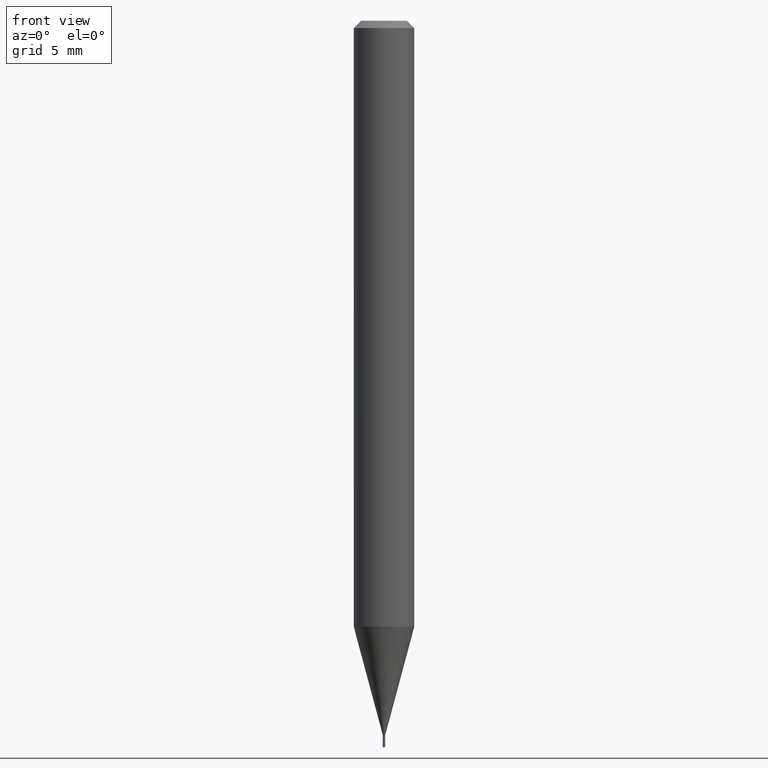
[diagram: clean part render]
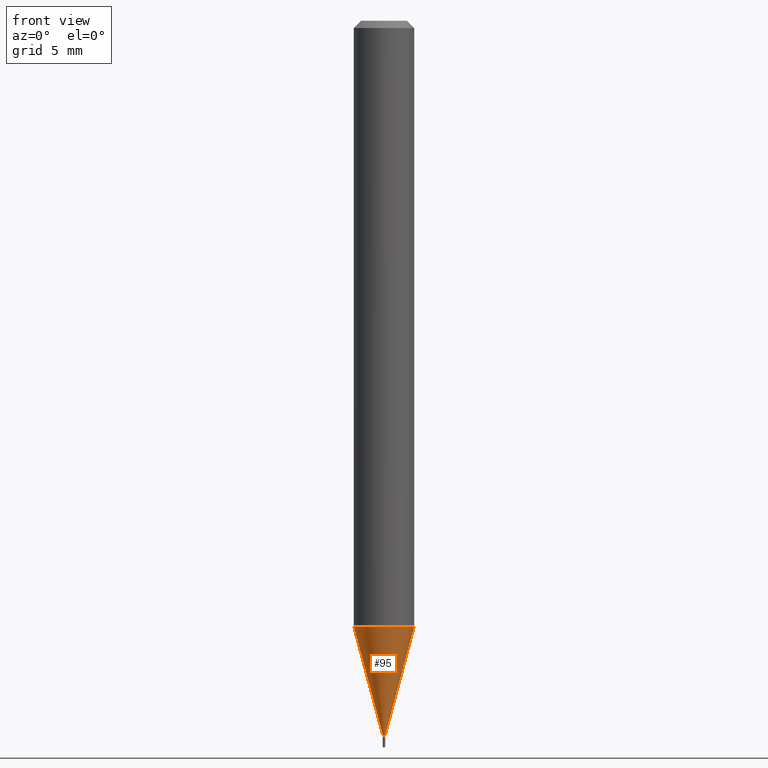
[diagram: same view with one face highlighted and labeled with its STEP entity id]
A machine part, front view. The second image highlights one B-rep face of the part: STEP entity #95.
In plain terms, the highlighted conical surface has half-angle 15 deg.
Its self-contained STEP definition (entity closure, byte-faithful):
#25 = EDGE_CURVE ( 'NONE', #400, #152, #322, .T. ) ;
#40 = FACE_OUTER_BOUND ( 'NONE', #112, .T. ) ;
#41 = DIRECTION ( 'NONE',  ( -0.2588190451025214611, 5.211531920934550253E-15, 0.9659258262890679791 ) ) ;
#49 = ORIENTED_EDGE ( 'NONE', *, *, #25, .F. ) ;
#51 = DIRECTION ( 'NONE',  ( -2.445468806185136597E-29, 3.491481338843145583E-15, 1.000000000000000000 ) ) ;
#73 = CARTESIAN_POINT ( 'NONE',  ( -0.002499999999999921989, -4.528097013164372051E-15, -1.474999999999999867 ) ) ;
#82 = CARTESIAN_POINT ( 'NONE',  ( 3.607066489123076032E-29, -5.149934974793639843E-15, -1.474999999999999867 ) ) ;
#95 = ADVANCED_FACE ( 'NONE', ( #40 ), #110, .T. ) ;
#99 = ORIENTED_EDGE ( 'NONE', *, *, #129, .T. ) ;
#110 = CONICAL_SURFACE ( 'NONE', #333, 0.002499999999999921989, 0.2617993877991501850 ) ;
#112 = EDGE_LOOP ( 'NONE', ( #49, #99, #425, #458 ) ) ;
#118 = CARTESIAN_POINT ( 'NONE',  ( 3.607066489123076032E-29, -5.149934974793639843E-15, -1.474999999999999867 ) ) ;
#129 = EDGE_CURVE ( 'NONE', #400, #313, #324, .T. ) ;
#152 = VERTEX_POINT ( 'NONE', #368 ) ;
#178 = AXIS2_PLACEMENT_3D ( 'NONE', #427, #329, #380 ) ;
#220 = CARTESIAN_POINT ( 'NONE',  ( 0.002499999999999921989, -5.167392381487854879E-15, -1.474999999999999867 ) ) ;
#221 = DIRECTION ( 'NONE',  ( -2.445468806185136597E-29, 3.491481338843145583E-15, 1.000000000000000000 ) ) ;
#231 = CARTESIAN_POINT ( 'NONE',  ( 0.06250000000000000000, -4.804546997134559093E-15, -1.251076951545867733 ) ) ;
#233 = CARTESIAN_POINT ( 'NONE',  ( 0.002499999999999921989, -5.167392381487854879E-15, -1.474999999999999867 ) ) ;
#239 = EDGE_CURVE ( 'NONE', #313, #283, #266, .T. ) ;
#264 = DIRECTION ( 'NONE',  ( 0.2588190451025214611, 1.565188264969620982E-15, 0.9659258262890679791 ) ) ;
#266 = LINE ( 'NONE', #220, #310 ) ;
#283 = VERTEX_POINT ( 'NONE', #231 ) ;
#306 = CIRCLE ( 'NONE', #178, 0.06250000000000000000 ) ;
#310 = VECTOR ( 'NONE', #264, 39.37007874015748143 ) ;
#313 = VERTEX_POINT ( 'NONE', #233 ) ;
#322 = LINE ( 'NONE', #332, #394 ) ;
#324 = CIRCLE ( 'NONE', #387, 0.002499999999999921989 ) ;
#329 = DIRECTION ( 'NONE',  ( -2.445468806185136597E-29, 3.491481338843145583E-15, 1.000000000000000000 ) ) ;
#332 = CARTESIAN_POINT ( 'NONE',  ( -0.002499999999999921989, -5.132171406399637717E-15, -1.474999999999999867 ) ) ;
#333 = AXIS2_PLACEMENT_3D ( 'NONE', #118, #51, #407 ) ;
#363 = DIRECTION ( 'NONE',  ( 1.000000000000000000, -6.982962677686356641E-15, 0.000000000000000000 ) ) ;
#368 = CARTESIAN_POINT ( 'NONE',  ( -0.06250000000000000000, -3.924022619929104807E-15, -1.251076951545867733 ) ) ;
#380 = DIRECTION ( 'NONE',  ( 1.000000000000000000, -6.982962677686270655E-15, 0.000000000000000000 ) ) ;
#387 = AXIS2_PLACEMENT_3D ( 'NONE', #82, #221, #363 ) ;
#394 = VECTOR ( 'NONE', #41, 39.37007874015748143 ) ;
#400 = VERTEX_POINT ( 'NONE', #73 ) ;
#407 = DIRECTION ( 'NONE',  ( 1.000000000000000000, -6.982962677686356641E-15, 0.000000000000000000 ) ) ;
#425 = ORIENTED_EDGE ( 'NONE', *, *, #239, .T. ) ;
#427 = CARTESIAN_POINT ( 'NONE',  ( 3.059469659142613042E-29, -4.368111829779167423E-15, -1.251076951545867733 ) ) ;
#454 = EDGE_CURVE ( 'NONE', #152, #283, #306, .T. ) ;
#458 = ORIENTED_EDGE ( 'NONE', *, *, #454, .F. ) ;